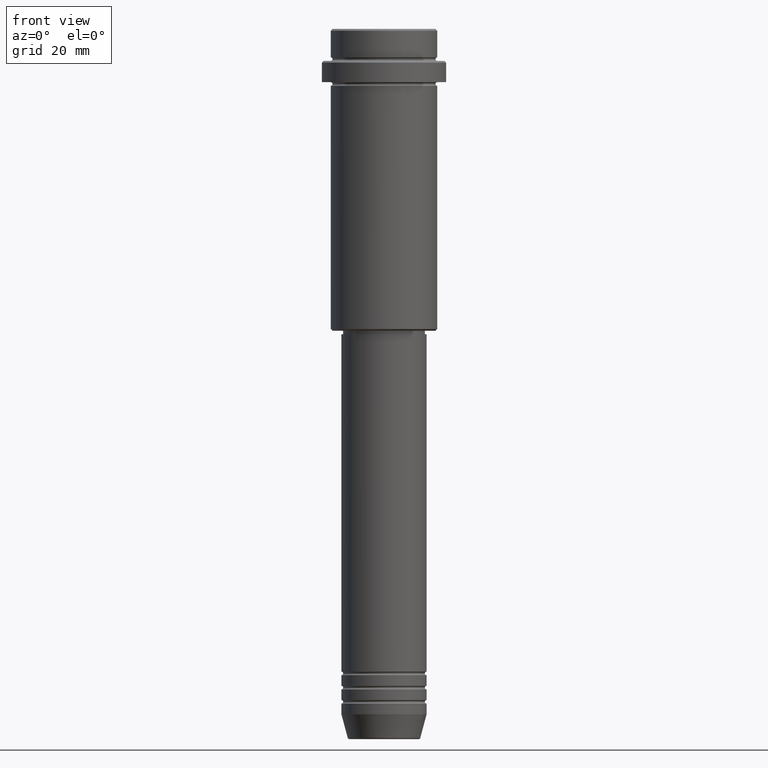
[diagram: clean part render]
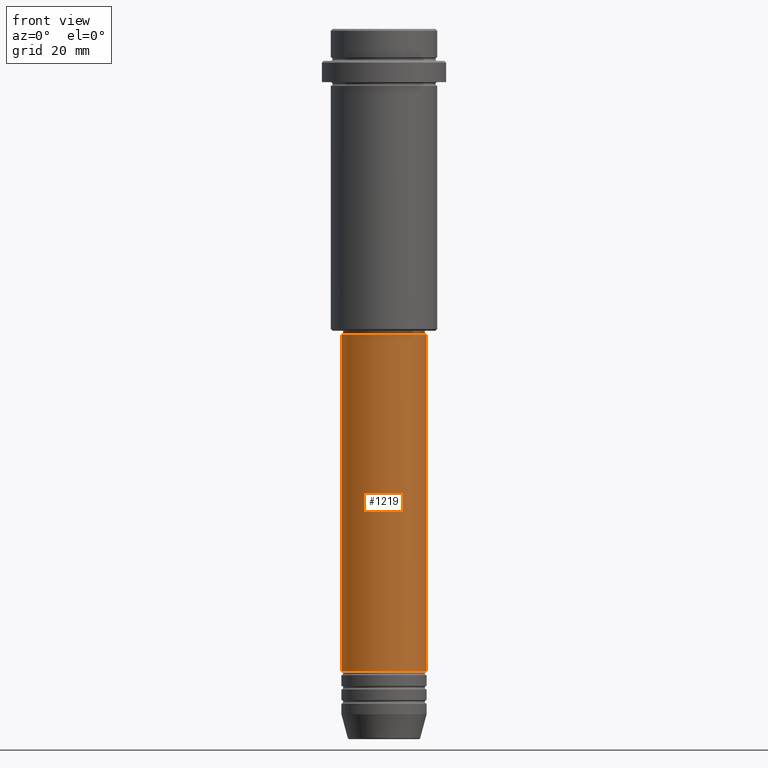
[diagram: same view with one face highlighted and labeled with its STEP entity id]
A machine part, front view. The second image highlights one B-rep face of the part: STEP entity #1219.
In plain terms, the highlighted cylindrical surface (partial cylindrical patch) has radius 12 mm, axis along (-0, -0, 1).
Its self-contained STEP definition (entity closure, byte-faithful):
#13 = AXIS2_PLACEMENT_3D ( 'NONE', #221, #778, #883 ) ;
#57 = AXIS2_PLACEMENT_3D ( 'NONE', #1414, #981, #343 ) ;
#64 = CARTESIAN_POINT ( 'NONE',  ( -12.00000000000000000, 1.469576158976823947E-15, 0.000000000000000000 ) ) ;
#104 = CIRCLE ( 'NONE', #939, 12.00000000000000000 ) ;
#116 = ORIENTED_EDGE ( 'NONE', *, *, #329, .F. ) ;
#157 = EDGE_CURVE ( 'NONE', #1362, #792, #104, .T. ) ;
#212 = EDGE_LOOP ( 'NONE', ( #116, #249, #697, #752 ) ) ;
#221 = CARTESIAN_POINT ( 'NONE',  ( 0.000000000000000000, 0.000000000000000000, -86.00000000000000000 ) ) ;
#223 = VECTOR ( 'NONE', #1057, 1000.000000000000000 ) ;
#249 = ORIENTED_EDGE ( 'NONE', *, *, #157, .T. ) ;
#329 = EDGE_CURVE ( 'NONE', #1362, #1390, #1146, .T. ) ;
#336 = DIRECTION ( 'NONE',  ( -0.000000000000000000, -0.000000000000000000, 1.000000000000000000 ) ) ;
#343 = DIRECTION ( 'NONE',  ( 1.000000000000000000, 0.000000000000000000, 0.000000000000000000 ) ) ;
#452 = CARTESIAN_POINT ( 'NONE',  ( 12.00000000000000000, 0.000000000000000000, -180.9999999999998863 ) ) ;
#566 = CARTESIAN_POINT ( 'NONE',  ( 12.00000000000000000, 0.000000000000000000, 0.000000000000000000 ) ) ;
#691 = VECTOR ( 'NONE', #702, 1000.000000000000000 ) ;
#697 = ORIENTED_EDGE ( 'NONE', *, *, #1050, .T. ) ;
#702 = DIRECTION ( 'NONE',  ( -0.000000000000000000, -0.000000000000000000, 1.000000000000000000 ) ) ;
#752 = ORIENTED_EDGE ( 'NONE', *, *, #1322, .F. ) ;
#765 = CARTESIAN_POINT ( 'NONE',  ( -12.00000000000000000, 1.469576158976823947E-15, -180.9999999999998863 ) ) ;
#778 = DIRECTION ( 'NONE',  ( -0.000000000000000000, -0.000000000000000000, 1.000000000000000000 ) ) ;
#792 = VERTEX_POINT ( 'NONE', #452 ) ;
#854 = FACE_OUTER_BOUND ( 'NONE', #212, .T. ) ;
#883 = DIRECTION ( 'NONE',  ( 1.000000000000000000, 0.000000000000000000, 0.000000000000000000 ) ) ;
#939 = AXIS2_PLACEMENT_3D ( 'NONE', #1413, #336, #1338 ) ;
#981 = DIRECTION ( 'NONE',  ( -0.000000000000000000, -0.000000000000000000, 1.000000000000000000 ) ) ;
#999 = VERTEX_POINT ( 'NONE', #1164 ) ;
#1050 = EDGE_CURVE ( 'NONE', #792, #999, #1141, .T. ) ;
#1057 = DIRECTION ( 'NONE',  ( -0.000000000000000000, -0.000000000000000000, 1.000000000000000000 ) ) ;
#1076 = CIRCLE ( 'NONE', #13, 11.99999999999999822 ) ;
#1086 = CYLINDRICAL_SURFACE ( 'NONE', #57, 12.00000000000000000 ) ;
#1141 = LINE ( 'NONE', #566, #223 ) ;
#1146 = LINE ( 'NONE', #64, #691 ) ;
#1164 = CARTESIAN_POINT ( 'NONE',  ( 11.99999999999999822, 0.000000000000000000, -86.00000000000000000 ) ) ;
#1219 = ADVANCED_FACE ( 'NONE', ( #854 ), #1086, .T. ) ;
#1322 = EDGE_CURVE ( 'NONE', #1390, #999, #1076, .T. ) ;
#1338 = DIRECTION ( 'NONE',  ( 1.000000000000000000, 0.000000000000000000, 0.000000000000000000 ) ) ;
#1341 = CARTESIAN_POINT ( 'NONE',  ( -11.99999999999999822, 1.469576158976823750E-15, -86.00000000000000000 ) ) ;
#1362 = VERTEX_POINT ( 'NONE', #765 ) ;
#1390 = VERTEX_POINT ( 'NONE', #1341 ) ;
#1413 = CARTESIAN_POINT ( 'NONE',  ( 0.000000000000000000, 0.000000000000000000, -180.9999999999998863 ) ) ;
#1414 = CARTESIAN_POINT ( 'NONE',  ( 0.000000000000000000, 0.000000000000000000, 0.000000000000000000 ) ) ;